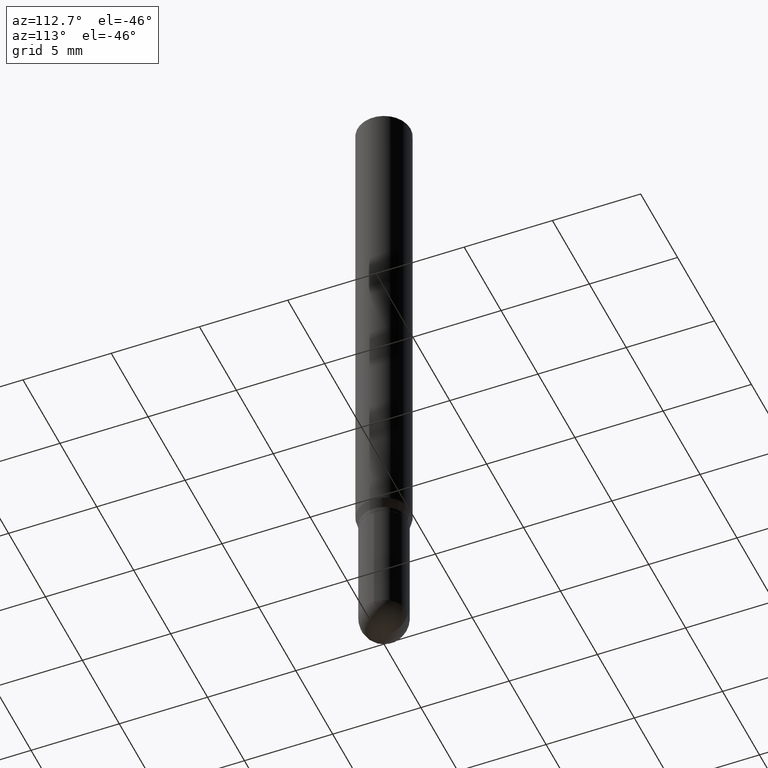
[diagram: clean part render]
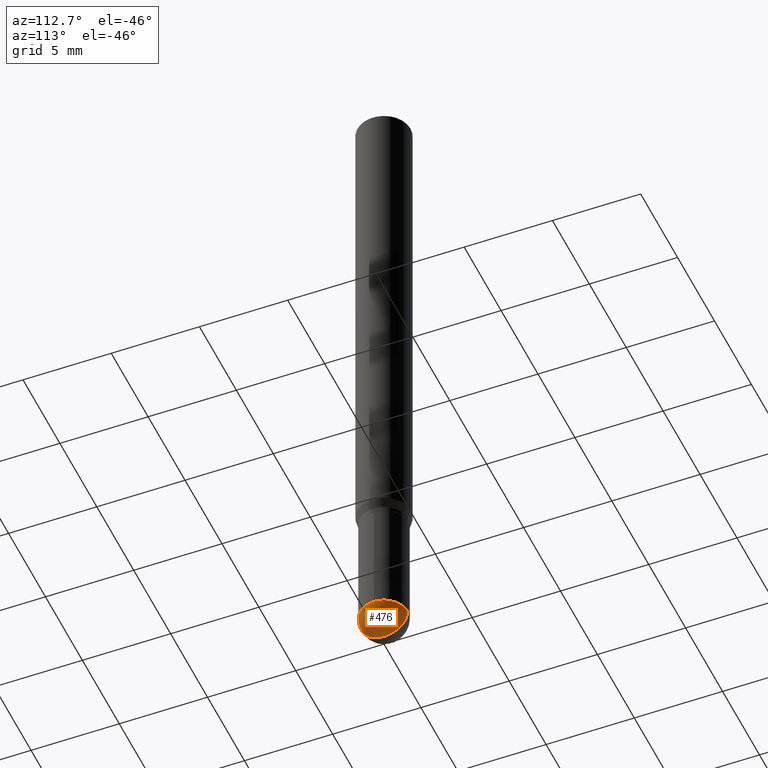
[diagram: same view with one face highlighted and labeled with its STEP entity id]
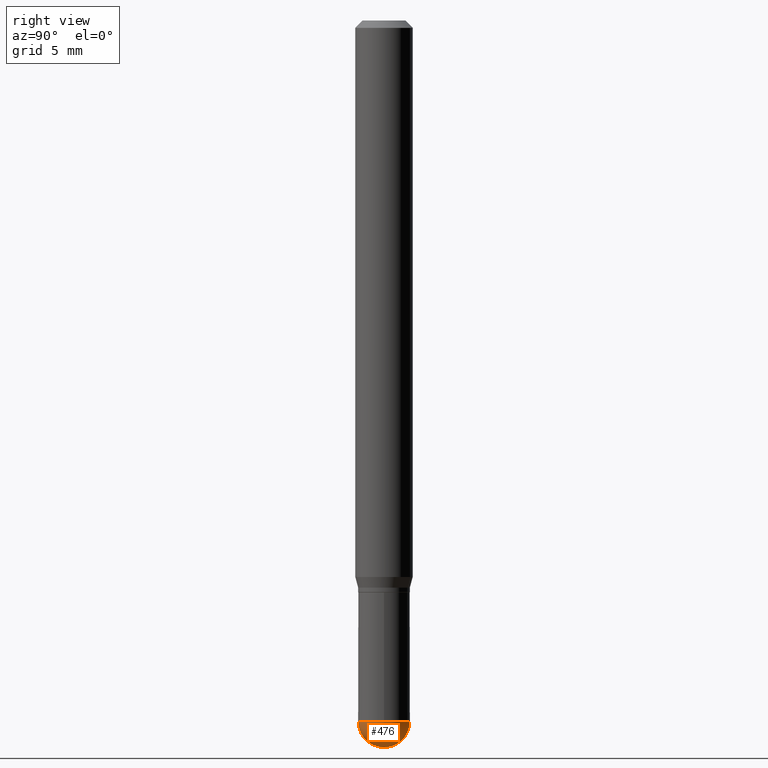
[diagram: same view with one face highlighted and labeled with its STEP entity id]
A machine part, auxiliary view. The second image highlights one B-rep face of the part: STEP entity #476.
A second angle (right view) of the same face is appended — the face is thin or edge-on in the first view.
In plain terms, the highlighted spherical surface has radius 1.35 mm.
Its self-contained STEP definition (entity closure, byte-faithful):
#18 = DIRECTION ( 'NONE',  ( -2.445468806185136597E-29, 3.491481338843145583E-15, 1.000000000000000000 ) ) ;
#26 = AXIS2_PLACEMENT_3D ( 'NONE', #374, #412, #138 ) ;
#30 = EDGE_LOOP ( 'NONE', ( #77, #160, #112, #439 ) ) ;
#32 = VERTEX_POINT ( 'NONE', #510 ) ;
#46 = CARTESIAN_POINT ( 'NONE',  ( 3.524144005057854329E-29, -5.044541995621184733E-15, -1.442949999999999955 ) ) ;
#50 = CARTESIAN_POINT ( 'NONE',  ( 3.651848067693100163E-29, -5.233368727649432255E-15, -1.496099999999999985 ) ) ;
#77 = ORIENTED_EDGE ( 'NONE', *, *, #187, .F. ) ;
#87 = CARTESIAN_POINT ( 'NONE',  ( 3.528689213884843040E-29, -5.038032997883716336E-15, -1.442949999999999955 ) ) ;
#111 = DIRECTION ( 'NONE',  ( 1.000000000000000000, -6.982962677686265922E-15, 4.883557194083112901E-29 ) ) ;
#112 = ORIENTED_EDGE ( 'NONE', *, *, #375, .F. ) ;
#116 = CIRCLE ( 'NONE', #271, 0.05314999999999998198 ) ;
#138 = DIRECTION ( 'NONE',  ( 1.000000000000000000, -6.982962677686260400E-15, 0.000000000000000000 ) ) ;
#152 = DIRECTION ( 'NONE',  ( 1.000000000000000000, -7.105427357601001070E-15, 4.926315508542082329E-29 ) ) ;
#160 = ORIENTED_EDGE ( 'NONE', *, *, #506, .T. ) ;
#177 = CARTESIAN_POINT ( 'NONE',  ( 3.776534640565284223E-16, 0.05314999999999495128, -1.442950000000000177 ) ) ;
#187 = EDGE_CURVE ( 'NONE', #311, #269, #116, .T. ) ;
#193 = CARTESIAN_POINT ( 'NONE',  ( 3.524144005057854329E-29, -5.044541995621184733E-15, -1.442949999999999955 ) ) ;
#228 = SPHERICAL_SURFACE ( 'NONE', #467, 0.05314999999999998198 ) ;
#235 = CARTESIAN_POINT ( 'NONE',  ( -3.711444663189897185E-16, -0.05315000000000504043, -1.442949999999999733 ) ) ;
#239 = AXIS2_PLACEMENT_3D ( 'NONE', #87, #18, #287 ) ;
#251 = DIRECTION ( 'NONE',  ( -1.000000000000000000, 6.982962677686265922E-15, -4.883557194083112340E-29 ) ) ;
#263 = FACE_OUTER_BOUND ( 'NONE', #30, .T. ) ;
#269 = VERTEX_POINT ( 'NONE', #235 ) ;
#271 = AXIS2_PLACEMENT_3D ( 'NONE', #46, #251, #276 ) ;
#276 = DIRECTION ( 'NONE',  ( -6.982962677686265922E-15, -1.000000000000000000, 0.000000000000000000 ) ) ;
#282 = CIRCLE ( 'NONE', #497, 0.05314999999999998198 ) ;
#285 = EDGE_CURVE ( 'NONE', #269, #32, #376, .T. ) ;
#287 = DIRECTION ( 'NONE',  ( 1.000000000000000000, -6.982962677686260400E-15, 0.000000000000000000 ) ) ;
#311 = VERTEX_POINT ( 'NONE', #50 ) ;
#363 = VERTEX_POINT ( 'NONE', #177 ) ;
#374 = CARTESIAN_POINT ( 'NONE',  ( 3.528689213884843040E-29, -5.038032997883716336E-15, -1.442949999999999955 ) ) ;
#375 = EDGE_CURVE ( 'NONE', #32, #363, #478, .T. ) ;
#376 = CIRCLE ( 'NONE', #239, 0.05315000000000000280 ) ;
#412 = DIRECTION ( 'NONE',  ( -2.445468806185136597E-29, 3.491481338843145583E-15, 1.000000000000000000 ) ) ;
#425 = DIRECTION ( 'NONE',  ( -6.982962677686265922E-15, -1.000000000000000000, 5.139883337091747917E-15 ) ) ;
#429 = CARTESIAN_POINT ( 'NONE',  ( 3.524144005057854329E-29, -5.044541995621184733E-15, -1.442949999999999955 ) ) ;
#439 = ORIENTED_EDGE ( 'NONE', *, *, #285, .F. ) ;
#467 = AXIS2_PLACEMENT_3D ( 'NONE', #193, #111, #425 ) ;
#476 = ADVANCED_FACE ( 'NONE', ( #263 ), #228, .T. ) ;
#478 = CIRCLE ( 'NONE', #26, 0.05315000000000000280 ) ;
#497 = AXIS2_PLACEMENT_3D ( 'NONE', #429, #152, #502 ) ;
#502 = DIRECTION ( 'NONE',  ( 7.105427357601001070E-15, 1.000000000000000000, 0.000000000000000000 ) ) ;
#506 = EDGE_CURVE ( 'NONE', #311, #363, #282, .T. ) ;
#510 = CARTESIAN_POINT ( 'NONE',  ( 0.05315000000000000280, -4.945246881303958097E-15, -1.442949999999999955 ) ) ;